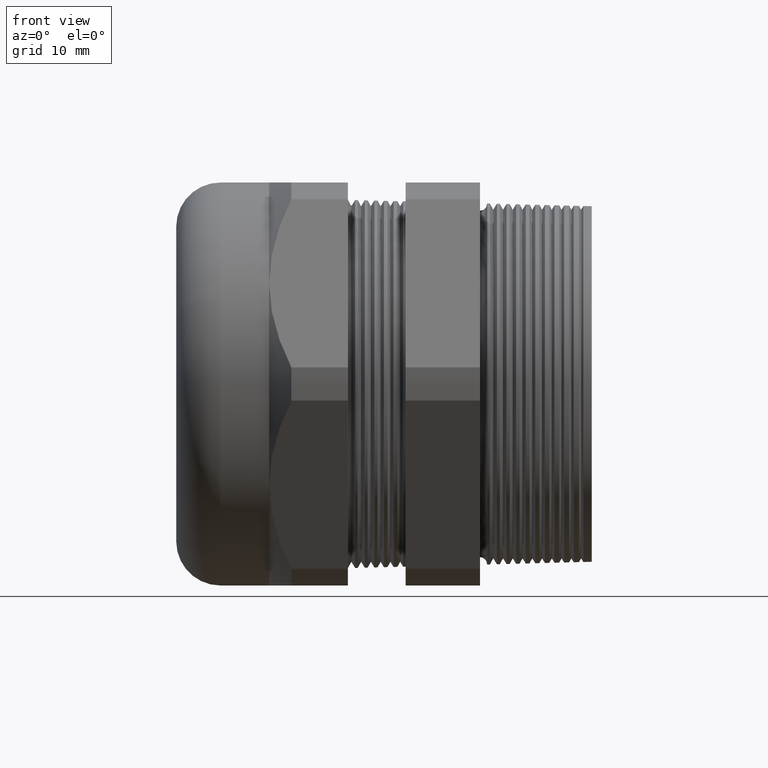
[diagram: clean part render]
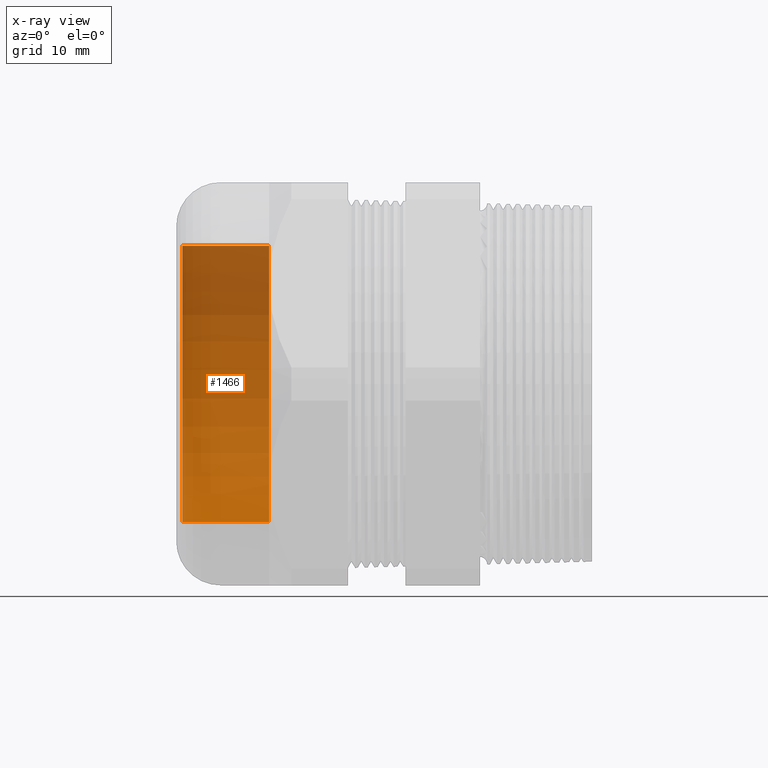
[diagram: x-ray — body ghosted, one internal face saturated and labeled with its STEP entity id]
A machine part, front view, then the same camera in x-ray: the body is ghosted and one INTERNAL B-rep face — a face not visible from any outside direction — is saturated and labeled: STEP entity #1466.
In plain terms, the highlighted cylindrical surface (partial cylindrical patch) has radius 22.2885 mm, axis along (1, 0, 0).
Its self-contained STEP definition (entity closure, byte-faithful):
#1411 = VERTEX_POINT ( 'NONE', #4108 ) ;
#1444 = ORIENTED_EDGE ( 'NONE', *, *, #1445, .F. ) ;
#1445 = EDGE_CURVE ( 'NONE', #1463, #1474, #4139, .T. ) ;
#1462 = EDGE_CURVE ( 'NONE', #1463, #1411, #4174, .T. ) ;
#1463 = VERTEX_POINT ( 'NONE', #4169 ) ;
#1466 = ADVANCED_FACE ( 'NONE', ( #4168 ), #4160, .T. ) ;
#1467 = EDGE_LOOP ( 'NONE', ( #1468, #1469, #1472, #1444 ) ) ;
#1468 = ORIENTED_EDGE ( 'NONE', *, *, #1462, .T. ) ;
#1469 = ORIENTED_EDGE ( 'NONE', *, *, #1470, .T. ) ;
#1470 = EDGE_CURVE ( 'NONE', #1411, #1471, #4161, .T. ) ;
#1471 = VERTEX_POINT ( 'NONE', #4153 ) ;
#1472 = ORIENTED_EDGE ( 'NONE', *, *, #1473, .F. ) ;
#1473 = EDGE_CURVE ( 'NONE', #1474, #1471, #4152, .T. ) ;
#1474 = VERTEX_POINT ( 'NONE', #4147 ) ;
#4108 = CARTESIAN_POINT ( 'NONE',  ( -2.200999999999999600, 1.074627566251802700E-016, 0.8775000000000001700 ) ) ;
#4132 = DIRECTION ( 'NONE',  ( 1.000000000000000000, 0.0000000000000000000, 0.0000000000000000000 ) ) ;
#4133 = VECTOR ( 'NONE', #4132, 39.37007874015748100 ) ;
#4134 = CARTESIAN_POINT ( 'NONE',  ( 0.0000000000000000000, 0.0000000000000000000, -0.8775000000000001700 ) ) ;
#4139 = LINE ( 'NONE', #4134, #4133 ) ;
#4147 = CARTESIAN_POINT ( 'NONE',  ( -1.649449999999999600, 0.0000000000000000000, -0.8774999999999999500 ) ) ;
#4148 = DIRECTION ( 'NONE',  ( 0.0000000000000000000, 0.0000000000000000000, -1.000000000000000000 ) ) ;
#4149 = DIRECTION ( 'NONE',  ( 1.000000000000000000, 0.0000000000000000000, 0.0000000000000000000 ) ) ;
#4150 = CARTESIAN_POINT ( 'NONE',  ( -1.649449999999999600, 0.0000000000000000000, 0.0000000000000000000 ) ) ;
#4151 = AXIS2_PLACEMENT_3D ( 'NONE', #4150, #4149, #4148 ) ;
#4152 = CIRCLE ( 'NONE', #4151, 0.8774999999999999500 ) ;
#4153 = CARTESIAN_POINT ( 'NONE',  ( -1.649449999999999600, 1.074627566251802500E-016, 0.8774999999999999500 ) ) ;
#4154 = DIRECTION ( 'NONE',  ( 1.000000000000000000, 0.0000000000000000000, 0.0000000000000000000 ) ) ;
#4155 = VECTOR ( 'NONE', #4154, 39.37007874015748100 ) ;
#4156 = CARTESIAN_POINT ( 'NONE',  ( 0.0000000000000000000, 1.074627566251802700E-016, 0.8775000000000001700 ) ) ;
#4157 = DIRECTION ( 'NONE',  ( 0.0000000000000000000, 0.0000000000000000000, -1.000000000000000000 ) ) ;
#4158 = DIRECTION ( 'NONE',  ( 1.000000000000000000, 0.0000000000000000000, 0.0000000000000000000 ) ) ;
#4159 = AXIS2_PLACEMENT_3D ( 'NONE', #4162, #4158, #4157 ) ;
#4160 = CYLINDRICAL_SURFACE ( 'NONE', #4159, 0.8775000000000001700 ) ;
#4161 = LINE ( 'NONE', #4156, #4155 ) ;
#4162 = CARTESIAN_POINT ( 'NONE',  ( 0.0000000000000000000, 0.0000000000000000000, 0.0000000000000000000 ) ) ;
#4168 = FACE_OUTER_BOUND ( 'NONE', #1467, .T. ) ;
#4169 = CARTESIAN_POINT ( 'NONE',  ( -2.200999999999999600, 0.0000000000000000000, -0.8775000000000001700 ) ) ;
#4170 = DIRECTION ( 'NONE',  ( 0.0000000000000000000, 0.0000000000000000000, -1.000000000000000000 ) ) ;
#4171 = DIRECTION ( 'NONE',  ( 1.000000000000000000, 0.0000000000000000000, 0.0000000000000000000 ) ) ;
#4172 = CARTESIAN_POINT ( 'NONE',  ( -2.200999999999999600, 0.0000000000000000000, 0.0000000000000000000 ) ) ;
#4173 = AXIS2_PLACEMENT_3D ( 'NONE', #4172, #4171, #4170 ) ;
#4174 = CIRCLE ( 'NONE', #4173, 0.8775000000000001700 ) ;